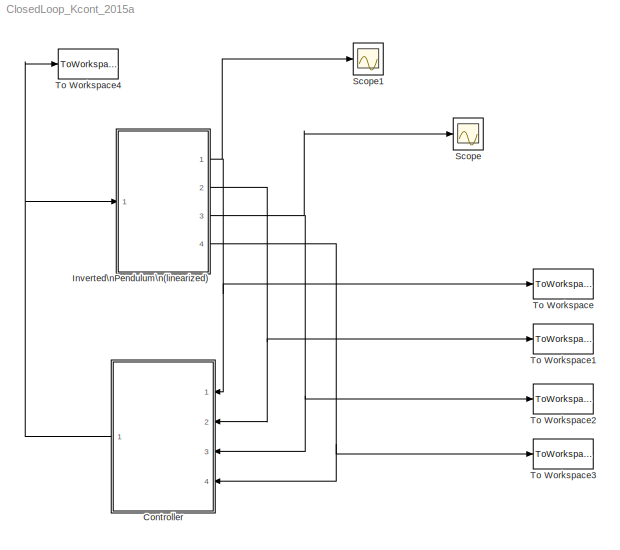
MODEL ClosedLoop_Kcont_2015a
KIND model
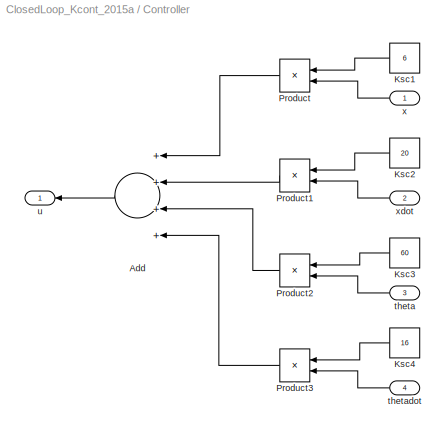
BLOCK [SubSystem] Controller
  Ports = [4, 1]
  RequestExecContextInheritance = off
  SID = 79
BLOCK [Sum] Controller/Add
  InputSameDT = off
  Inputs = ++++
  OutDataTypeStr = Inherit: Inherit via internal rule
  Ports = [4, 1]
  SID = 77
  SaturateOnIntegerOverflow = off
BLOCK [Constant] Controller/Ksc1
  SID = 63
  Value = 6
BLOCK [Constant] Controller/Ksc2
  SID = 64
  Value = 20
BLOCK [Constant] Controller/Ksc3
  SID = 65
  Value = 60
BLOCK [Constant] Controller/Ksc4
  SID = 66
  Value = 16
BLOCK [Product] Controller/Product
  InputSameDT = off
  OutDataTypeStr = Inherit: Inherit via internal rule
  Ports = [2, 1]
  RndMeth = Floor
  SID = 71
  SaturateOnIntegerOverflow = off
BLOCK [Product] Controller/Product1
  InputSameDT = off
  OutDataTypeStr = Inherit: Inherit via internal rule
  Ports = [2, 1]
  RndMeth = Floor
  SID = 72
  SaturateOnIntegerOverflow = off
BLOCK [Product] Controller/Product2
  InputSameDT = off
  OutDataTypeStr = Inherit: Inherit via internal rule
  Ports = [2, 1]
  RndMeth = Floor
  SID = 73
  SaturateOnIntegerOverflow = off
BLOCK [Product] Controller/Product3
  InputSameDT = off
  OutDataTypeStr = Inherit: Inherit via internal rule
  Ports = [2, 1]
  RndMeth = Floor
  SID = 74
  SaturateOnIntegerOverflow = off
BLOCK [Inport] Controller/theta
  IconDisplay = Port number
  Port = 3
  SID = 82
BLOCK [Inport] Controller/thetadot
  IconDisplay = Port number
  Port = 4
  SID = 83
BLOCK [Outport] Controller/u
  IconDisplay = Port number
  SID = 84
BLOCK [Inport] Controller/x
  IconDisplay = Port number
  SID = 80
BLOCK [Inport] Controller/xdot
  IconDisplay = Port number
  Port = 2
  SID = 81
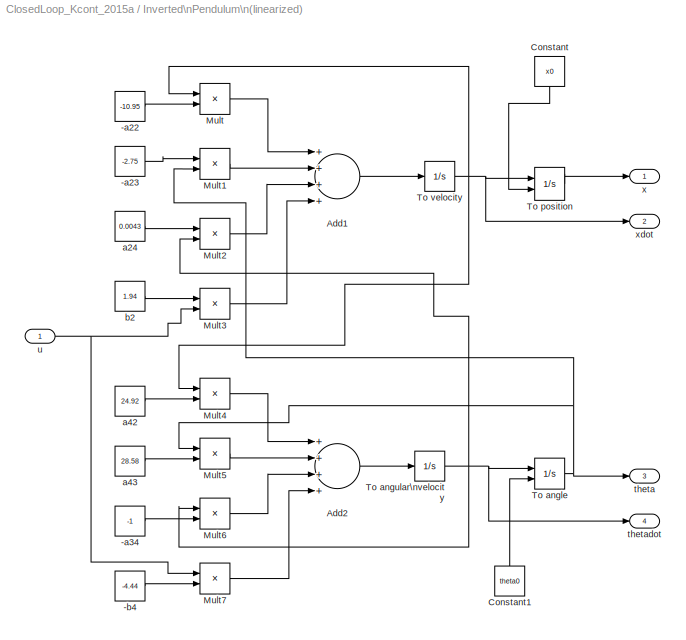
BLOCK [SubSystem] Inverted\nPendulum\n(linearized)
  Ports = [1, 4]
  RequestExecContextInheritance = off
  SID = 56
BLOCK [Constant] Inverted\nPendulum\n(linearized)/-a22
  SID = 28
  Value = -10.95
BLOCK [Constant] Inverted\nPendulum\n(linearized)/-a23
  SID = 29
  Value = -2.75
BLOCK [Constant] Inverted\nPendulum\n(linearized)/-a34
  SID = 34
  Value = -1
BLOCK [Constant] Inverted\nPendulum\n(linearized)/-b4
  SID = 35
  Value = -4.44
BLOCK [Sum] Inverted\nPendulum\n(linearized)/Add1
  InputSameDT = off
  Inputs = ++++
  OutDataTypeStr = Inherit: Inherit via internal rule
  Ports = [4, 1]
  SID = 37
  SaturateOnIntegerOverflow = off
BLOCK [Sum] Inverted\nPendulum\n(linearized)/Add2
  InputSameDT = off
  Inputs = ++++
  OutDataTypeStr = Inherit: Inherit via internal rule
  Ports = [4, 1]
  SID = 51
  SaturateOnIntegerOverflow = off
BLOCK [Constant] Inverted\nPendulum\n(linearized)/Constant
  SID = 96
  Value = x0
BLOCK [Constant] Inverted\nPendulum\n(linearized)/Constant1
  SID = 97
  Value = theta0
BLOCK [Product] Inverted\nPendulum\n(linearized)/Mult
  InputSameDT = off
  Inputs = **
  OutDataTypeStr = Inherit: Inherit via internal rule
  Ports = [2, 1]
  RndMeth = Floor
  SID = 36
  SaturateOnIntegerOverflow = off
BLOCK [Product] Inverted\nPendulum\n(linearized)/Mult1
  InputSameDT = off
  Inputs = **
  OutDataTypeStr = Inherit: Inherit via internal rule
  Ports = [2, 1]
  RndMeth = Floor
  SID = 38
  SaturateOnIntegerOverflow = off
BLOCK [Product] Inverted\nPendulum\n(linearized)/Mult2
  InputSameDT = off
  Inputs = **
  OutDataTypeStr = Inherit: Inherit via internal rule
  Ports = [2, 1]
  RndMeth = Floor
  SID = 39
  SaturateOnIntegerOverflow = off
BLOCK [Product] Inverted\nPendulum\n(linearized)/Mult3
  InputSameDT = off
  Inputs = **
  OutDataTypeStr = Inherit: Inherit via internal rule
  Ports = [2, 1]
  RndMeth = Floor
  SID = 41
  SaturateOnIntegerOverflow = off
BLOCK [Product] Inverted\nPendulum\n(linearized)/Mult4
  InputSameDT = off
  Inputs = **
  OutDataTypeStr = Inherit: Inherit via internal rule
  Ports = [2, 1]
  RndMeth = Floor
  SID = 47
  SaturateOnIntegerOverflow = off
BLOCK [Product] Inverted\nPendulum\n(linearized)/Mult5
  InputSameDT = off
  Inputs = **
  OutDataTypeStr = Inherit: Inherit via internal rule
  Ports = [2, 1]
  RndMeth = Floor
  SID = 48
  SaturateOnIntegerOverflow = off
BLOCK [Product] Inverted\nPendulum\n(linearized)/Mult6
  InputSameDT = off
  Inputs = **
  OutDataTypeStr = Inherit: Inherit via internal rule
  Ports = [2, 1]
  RndMeth = Floor
  SID = 49
  SaturateOnIntegerOverflow = off
BLOCK [Product] Inverted\nPendulum\n(linearized)/Mult7
  InputSameDT = off
  Inputs = **
  OutDataTypeStr = Inherit: Inherit via internal rule
  Ports = [2, 1]
  RndMeth = Floor
  SID = 50
  SaturateOnIntegerOverflow = off
BLOCK [Integrator] Inverted\nPendulum\n(linearized)/To angle
  InitialCondition = 1.5
  InitialConditionSource = external
  Ports = [2, 1]
  SID = 53
BLOCK [Integrator] Inverted\nPendulum\n(linearized)/To angular\nvelocity
  Ports = [1, 1]
  SID = 52
BLOCK [Integrator] Inverted\nPendulum\n(linearized)/To position
  InitialCondition = 1
  InitialConditionSource = external
  Ports = [2, 1]
  SID = 44
BLOCK [Integrator] Inverted\nPendulum\n(linearized)/To velocity
  Ports = [1, 1]
  SID = 43
BLOCK [Constant] Inverted\nPendulum\n(linearized)/a24
  SID = 30
  Value = 0.0043
BLOCK [Constant] Inverted\nPendulum\n(linearized)/a42
  SID = 32
  Value = 24.92
BLOCK [Constant] Inverted\nPendulum\n(linearized)/a43
  SID = 33
  Value = 28.58
BLOCK [Constant] Inverted\nPendulum\n(linearized)/b2
  SID = 31
  Value = 1.94
BLOCK [Outport] Inverted\nPendulum\n(linearized)/theta
  IconDisplay = Port number
  Port = 3
  SID = 60
BLOCK [Outport] Inverted\nPendulum\n(linearized)/thetadot
  IconDisplay = Port number
  Port = 4
  SID = 61
BLOCK [Inport] Inverted\nPendulum\n(linearized)/u
  IconDisplay = Port number
  SID = 57
BLOCK [Outport] Inverted\nPendulum\n(linearized)/x
  IconDisplay = Port number
  SID = 58
BLOCK [Outport] Inverted\nPendulum\n(linearized)/xdot
  IconDisplay = Port number
  Port = 2
  SID = 59
BLOCK [Scope] Scope
  DataFormat = StructureWithTime
  Decimation = 1
  Floating = off
  Grid = on
  LimitDataPoints = off
  MaxDataPoints = 5000
  NumInputPorts = 1
  Ports = [1]
  SID = 99
  SampleInput = off
  SampleTime = -1
  SaveName = ScopeData
  SaveToWorkspace = off
  ShowLegends = off
  TickLabels = OneTimeTick
  TimeRange = auto
  YMax = 0.12175
  YMin = -0.09575
  ZoomMode = on
BLOCK [Scope] Scope1
  DataFormat = StructureWithTime
  Decimation = 1
  Floating = off
  Grid = on
  LimitDataPoints = off
  MaxDataPoints = 5000
  NumInputPorts = 1
  Ports = [1]
  SID = 100
  SampleInput = off
  SampleTime = -1
  SaveName = ScopeData1
  SaveToWorkspace = off
  ShowLegends = off
  TickLabels = OneTimeTick
  TimeRange = auto
  YMax = 0.68893
  YMin = -0.06984
  ZoomMode = on
BLOCK [ToWorkspace] To Workspace
  Decimation = 2
  FixptAsFi = on
  MaxDataPoints = inf
  Ports = [1]
  SID = 90
  SampleTime = 0.005
  Save2DSignal = 2-D array (concatenate along first dimension)
  VariableName = xx
BLOCK [ToWorkspace] To Workspace1
  Decimation = 2
  FixptAsFi = on
  MaxDataPoints = inf
  Ports = [1]
  SID = 91
  SampleTime = 0.005
  Save2DSignal = 2-D array (concatenate along first dimension)
  VariableName = xxdot
BLOCK [ToWorkspace] To Workspace2
  Decimation = 2
  FixptAsFi = on
  MaxDataPoints = inf
  Ports = [1]
  SID = 92
  SampleTime = 0.005
  Save2DSignal = 2-D array (concatenate along first dimension)
  VariableName = xtheta
BLOCK [ToWorkspace] To Workspace3
  Decimation = 2
  FixptAsFi = on
  MaxDataPoints = inf
  Ports = [1]
  SID = 93
  SampleTime = 0.005
  Save2DSignal = 2-D array (concatenate along first dimension)
  VariableName = xthetadot
BLOCK [ToWorkspace] To Workspace4
  Decimation = 2
  FixptAsFi = on
  MaxDataPoints = inf
  Ports = [1]
  SID = 98
  SampleTime = 0.005
  Save2DSignal = 2-D array (concatenate along first dimension)
  VariableName = u
LINE Controller/Add:1 -> Controller/u:1
LINE Controller/Ksc1:1 -> Controller/Product:1
LINE Controller/Ksc2:1 -> Controller/Product1:1
LINE Controller/Ksc3:1 -> Controller/Product2:1
LINE Controller/Ksc4:1 -> Controller/Product3:1
LINE Controller/Product1:1 -> Controller/Add:2
LINE Controller/Product2:1 -> Controller/Add:3
LINE Controller/Product3:1 -> Controller/Add:4
LINE Controller/Product:1 -> Controller/Add:1
LINE Controller/theta:1 -> Controller/Product2:2
LINE Controller/thetadot:1 -> Controller/Product3:2
LINE Controller/x:1 -> Controller/Product:2
LINE Controller/xdot:1 -> Controller/Product1:2
NET Controller:1 -> Inverted\nPendulum\n(linearized):1, To Workspace4:1
LINE Inverted\nPendulum\n(linearized)/-a22:1 -> Inverted\nPendulum\n(linearized)/Mult:2
LINE Inverted\nPendulum\n(linearized)/-a23:1 -> Inverted\nPendulum\n(linearized)/Mult1:1
LINE Inverted\nPendulum\n(linearized)/-a34:1 -> Inverted\nPendulum\n(linearized)/Mult6:2
LINE Inverted\nPendulum\n(linearized)/-b4:1 -> Inverted\nPendulum\n(linearized)/Mult7:2
LINE Inverted\nPendulum\n(linearized)/Add1:1 -> Inverted\nPendulum\n(linearized)/To velocity:1
LINE Inverted\nPendulum\n(linearized)/Add2:1 -> Inverted\nPendulum\n(linearized)/To angular\nvelocity:1
LINE Inverted\nPendulum\n(linearized)/Constant1:1 -> Inverted\nPendulum\n(linearized)/To angle:2
LINE Inverted\nPendulum\n(linearized)/Constant:1 -> Inverted\nPendulum\n(linearized)/To position:2
LINE Inverted\nPendulum\n(linearized)/Mult1:1 -> Inverted\nPendulum\n(linearized)/Add1:2
LINE Inverted\nPendulum\n(linearized)/Mult2:1 -> Inverted\nPendulum\n(linearized)/Add1:3
LINE Inverted\nPendulum\n(linearized)/Mult3:1 -> Inverted\nPendulum\n(linearized)/Add1:4
LINE Inverted\nPendulum\n(linearized)/Mult4:1 -> Inverted\nPendulum\n(linearized)/Add2:1
LINE Inverted\nPendulum\n(linearized)/Mult5:1 -> Inverted\nPendulum\n(linearized)/Add2:2
LINE Inverted\nPendulum\n(linearized)/Mult6:1 -> Inverted\nPendulum\n(linearized)/Add2:3
LINE Inverted\nPendulum\n(linearized)/Mult7:1 -> Inverted\nPendulum\n(linearized)/Add2:4
LINE Inverted\nPendulum\n(linearized)/Mult:1 -> Inverted\nPendulum\n(linearized)/Add1:1
NET Inverted\nPendulum\n(linearized)/To angle:1 -> Inverted\nPendulum\n(linearized)/Mult1:2, Inverted\nPendulum\n(linearized)/Mult5:1, Inverted\nPendulum\n(linearized)/theta:1
NET Inverted\nPendulum\n(linearized)/To angular\nvelocity:1 -> Inverted\nPendulum\n(linearized)/Mult2:2, Inverted\nPendulum\n(linearized)/Mult6:1, Inverted\nPendulum\n(linearized)/To angle:1, Inverted\nPendulum\n(linearized)/thetadot:1
LINE Inverted\nPendulum\n(linearized)/To position:1 -> Inverted\nPendulum\n(linearized)/x:1
NET Inverted\nPendulum\n(linearized)/To velocity:1 -> Inverted\nPendulum\n(linearized)/Mult4:1, Inverted\nPendulum\n(linearized)/Mult:1, Inverted\nPendulum\n(linearized)/To position:1, Inverted\nPendulum\n(linearized)/xdot:1
LINE Inverted\nPendulum\n(linearized)/a24:1 -> Inverted\nPendulum\n(linearized)/Mult2:1
LINE Inverted\nPendulum\n(linearized)/a42:1 -> Inverted\nPendulum\n(linearized)/Mult4:2
LINE Inverted\nPendulum\n(linearized)/a43:1 -> Inverted\nPendulum\n(linearized)/Mult5:2
LINE Inverted\nPendulum\n(linearized)/b2:1 -> Inverted\nPendulum\n(linearized)/Mult3:1
NET Inverted\nPendulum\n(linearized)/u:1 -> Inverted\nPendulum\n(linearized)/Mult3:2, Inverted\nPendulum\n(linearized)/Mult7:1
NET Inverted\nPendulum\n(linearized):1 -> Controller:1, Scope1:1, To Workspace:1
NET Inverted\nPendulum\n(linearized):2 -> Controller:2, To Workspace1:1
NET Inverted\nPendulum\n(linearized):3 -> Controller:3, Scope:1, To Workspace2:1
NET Inverted\nPendulum\n(linearized):4 -> Controller:4, To Workspace3:1
note: NET lines group one-source signal fan-out (src -> all destinations, sorted); 1:1 wires keep LINE
